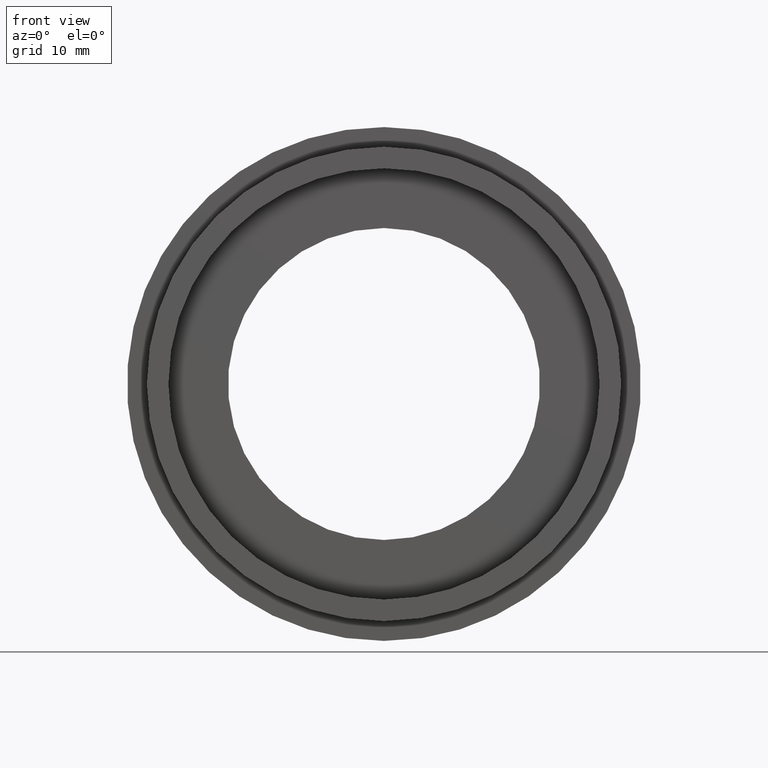
[diagram: clean part render]
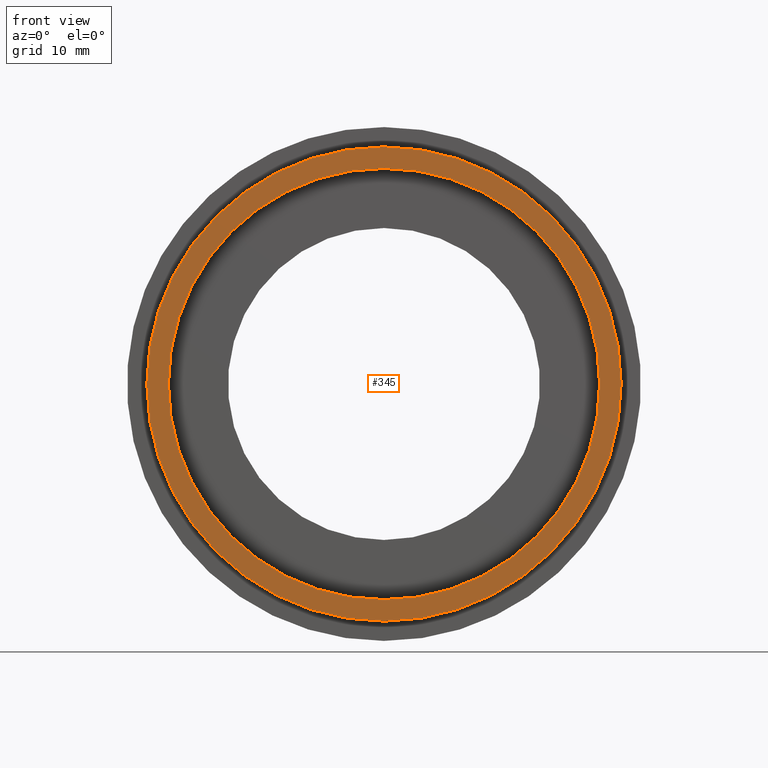
[diagram: same view with one face highlighted and labeled with its STEP entity id]
A machine part, front view. The second image highlights one B-rep face of the part: STEP entity #345.
In plain terms, the highlighted planar face has unit normal (-0, 1, 0).
Its self-contained STEP definition (entity closure, byte-faithful):
#11 = FACE_OUTER_BOUND ( 'NONE', #320, .T. ) ;
#40 = DIRECTION ( 'NONE',  ( -0.0000000000000000000, 1.000000000000000000, -0.0000000000000000000 ) ) ;
#42 = PLANE ( 'NONE',  #108 ) ;
#68 = CARTESIAN_POINT ( 'NONE',  ( 2.877919977996280300E-015, 0.0000000000000000000, -23.50000000000000000 ) ) ;
#93 = DIRECTION ( 'NONE',  ( 0.0000000000000000000, 0.0000000000000000000, 1.000000000000000000 ) ) ;
#108 = AXIS2_PLACEMENT_3D ( 'NONE', #575, #434, #93 ) ;
#134 = AXIS2_PLACEMENT_3D ( 'NONE', #386, #40, #340 ) ;
#156 = AXIS2_PLACEMENT_3D ( 'NONE', #501, #216, #495 ) ;
#187 = AXIS2_PLACEMENT_3D ( 'NONE', #214, #271, #317 ) ;
#208 = EDGE_CURVE ( 'NONE', #258, #312, #469, .T. ) ;
#214 = CARTESIAN_POINT ( 'NONE',  ( 0.0000000000000000000, 0.0000000000000000000, 0.0000000000000000000 ) ) ;
#216 = DIRECTION ( 'NONE',  ( -0.0000000000000000000, 1.000000000000000000, -0.0000000000000000000 ) ) ;
#238 = VERTEX_POINT ( 'NONE', #426 ) ;
#258 = VERTEX_POINT ( 'NONE', #578 ) ;
#262 = DIRECTION ( 'NONE',  ( 0.0000000000000000000, 0.0000000000000000000, 1.000000000000000000 ) ) ;
#271 = DIRECTION ( 'NONE',  ( -0.0000000000000000000, 1.000000000000000000, -0.0000000000000000000 ) ) ;
#286 = AXIS2_PLACEMENT_3D ( 'NONE', #306, #586, #262 ) ;
#293 = FACE_BOUND ( 'NONE', #449, .T. ) ;
#306 = CARTESIAN_POINT ( 'NONE',  ( 0.0000000000000000000, 0.0000000000000000000, 0.0000000000000000000 ) ) ;
#308 = CIRCLE ( 'NONE', #187, 23.50000000000000000 ) ;
#312 = VERTEX_POINT ( 'NONE', #346 ) ;
#317 = DIRECTION ( 'NONE',  ( 0.0000000000000000000, 0.0000000000000000000, 1.000000000000000000 ) ) ;
#320 = EDGE_LOOP ( 'NONE', ( #582, #456 ) ) ;
#335 = ORIENTED_EDGE ( 'NONE', *, *, #498, .T. ) ;
#340 = DIRECTION ( 'NONE',  ( 0.0000000000000000000, 0.0000000000000000000, 1.000000000000000000 ) ) ;
#345 = ADVANCED_FACE ( 'NONE', ( #11, #293 ), #42, .F. ) ;
#346 = CARTESIAN_POINT ( 'NONE',  ( 0.0000000000000000000, 0.0000000000000000000, 25.84499999999999900 ) ) ;
#373 = EDGE_CURVE ( 'NONE', #455, #238, #618, .T. ) ;
#386 = CARTESIAN_POINT ( 'NONE',  ( 0.0000000000000000000, 0.0000000000000000000, 0.0000000000000000000 ) ) ;
#395 = ORIENTED_EDGE ( 'NONE', *, *, #373, .T. ) ;
#426 = CARTESIAN_POINT ( 'NONE',  ( 0.0000000000000000000, 0.0000000000000000000, 23.50000000000000000 ) ) ;
#429 = CIRCLE ( 'NONE', #156, 25.84499999999999900 ) ;
#434 = DIRECTION ( 'NONE',  ( -0.0000000000000000000, 1.000000000000000000, 0.0000000000000000000 ) ) ;
#449 = EDGE_LOOP ( 'NONE', ( #335, #395 ) ) ;
#455 = VERTEX_POINT ( 'NONE', #68 ) ;
#456 = ORIENTED_EDGE ( 'NONE', *, *, #208, .F. ) ;
#469 = CIRCLE ( 'NONE', #286, 25.84499999999999900 ) ;
#495 = DIRECTION ( 'NONE',  ( 0.0000000000000000000, 0.0000000000000000000, 1.000000000000000000 ) ) ;
#498 = EDGE_CURVE ( 'NONE', #238, #455, #308, .T. ) ;
#501 = CARTESIAN_POINT ( 'NONE',  ( 0.0000000000000000000, 0.0000000000000000000, 0.0000000000000000000 ) ) ;
#531 = EDGE_CURVE ( 'NONE', #312, #258, #429, .T. ) ;
#575 = CARTESIAN_POINT ( 'NONE',  ( 25.84499999999999900, 1.283273507617168800E-016, 0.0000000000000000000 ) ) ;
#578 = CARTESIAN_POINT ( 'NONE',  ( 3.165099652396334400E-015, 0.0000000000000000000, -25.84499999999999900 ) ) ;
#582 = ORIENTED_EDGE ( 'NONE', *, *, #531, .F. ) ;
#586 = DIRECTION ( 'NONE',  ( -0.0000000000000000000, 1.000000000000000000, -0.0000000000000000000 ) ) ;
#618 = CIRCLE ( 'NONE', #134, 23.50000000000000000 ) ;